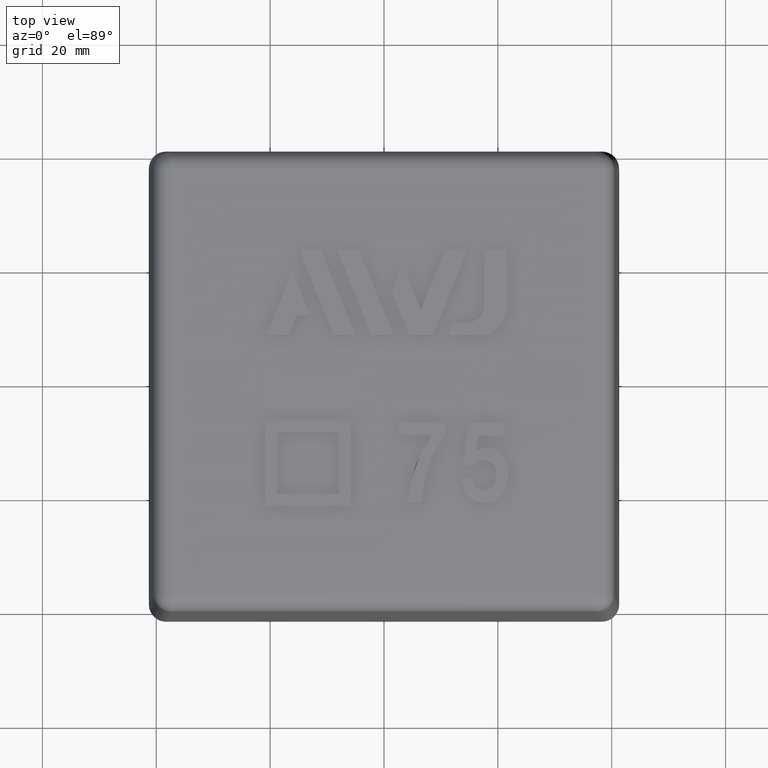
[diagram: clean part render]
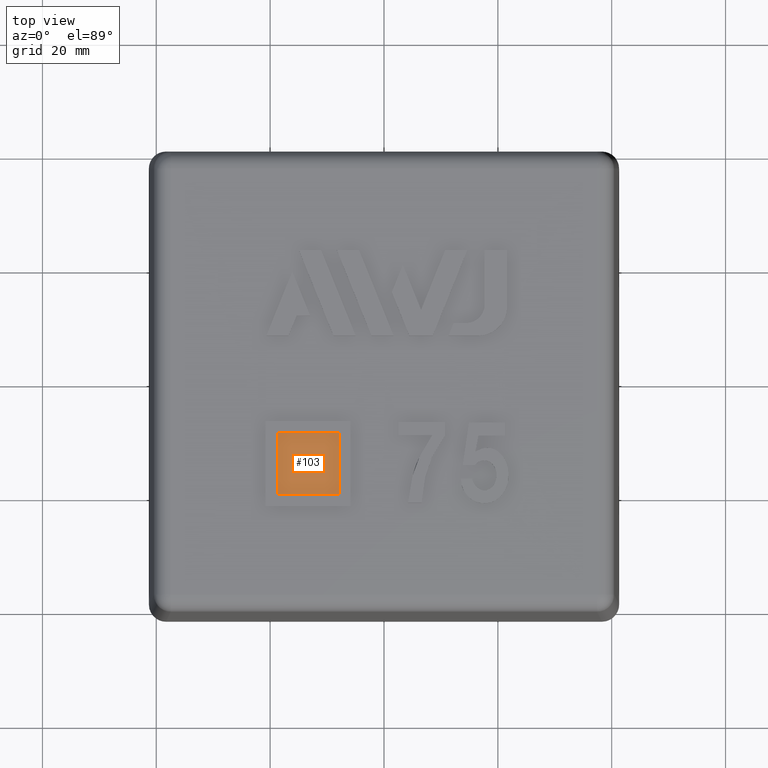
[diagram: same view with one face highlighted and labeled with its STEP entity id]
A machine part, top view. The second image highlights one B-rep face of the part: STEP entity #103.
In plain terms, the highlighted planar face has unit normal (0, 0, 1).
Its self-contained STEP definition (entity closure, byte-faithful):
#103 = ADVANCED_FACE( '', ( #226 ), #227, .T. );
#226 = FACE_OUTER_BOUND( '', #410, .T. );
#227 = PLANE( '', #411 );
#410 = EDGE_LOOP( '', ( #812, #813, #814, #815 ) );
#411 = AXIS2_PLACEMENT_3D( '', #816, #817, #818 );
#812 = ORIENTED_EDGE( '', *, *, #1342, .T. );
#813 = ORIENTED_EDGE( '', *, *, #1343, .T. );
#814 = ORIENTED_EDGE( '', *, *, #1344, .T. );
#815 = ORIENTED_EDGE( '', *, *, #1345, .T. );
#816 = CARTESIAN_POINT( '', ( -41.3000000000000, -41.3000000000000, 53.0000000000000 ) );
#817 = DIRECTION( '', ( 0.000000000000000, 0.000000000000000, 1.00000000000000 ) );
#818 = DIRECTION( '', ( 0.000000000000000, -1.00000000000000, 0.000000000000000 ) );
#1342 = EDGE_CURVE( '', #1641, #1642, #1643, .T. );
#1343 = EDGE_CURVE( '', #1642, #1644, #1645, .T. );
#1344 = EDGE_CURVE( '', #1644, #1646, #1647, .T. );
#1345 = EDGE_CURVE( '', #1646, #1641, #1648, .T. );
#1641 = VERTEX_POINT( '', #2173 );
#1642 = VERTEX_POINT( '', #2174 );
#1643 = B_SPLINE_CURVE_WITH_KNOTS( '', 2, ( #2175, #2176, #2177 ), .UNSPECIFIED., .F., .F., ( 3, 3 ), ( 3.00000000000000, 4.00000000000000 ), .UNSPECIFIED. );
#1644 = VERTEX_POINT( '', #2178 );
#1645 = B_SPLINE_CURVE_WITH_KNOTS( '', 2, ( #2179, #2180, #2181 ), .UNSPECIFIED., .F., .F., ( 3, 3 ), ( 0.000000000000000, 1.00000000000000 ), .UNSPECIFIED. );
#1646 = VERTEX_POINT( '', #2182 );
#1647 = B_SPLINE_CURVE_WITH_KNOTS( '', 2, ( #2183, #2184, #2185 ), .UNSPECIFIED., .F., .F., ( 3, 3 ), ( 1.00000000000000, 2.00000000000000 ), .UNSPECIFIED. );
#1648 = B_SPLINE_CURVE_WITH_KNOTS( '', 2, ( #2186, #2187, #2188 ), .UNSPECIFIED., .F., .F., ( 3, 3 ), ( 2.00000000000000, 3.00000000000000 ), .UNSPECIFIED. );
#2173 = CARTESIAN_POINT( '', ( -18.7624892045455, -9.01355454545457, 53.0000000000000 ) );
#2174 = CARTESIAN_POINT( '', ( -18.7624892045455, -19.8544636363637, 53.0000000000000 ) );
#2175 = CARTESIAN_POINT( '', ( -18.7624892045455, -9.01355454545457, 53.0000000000000 ) );
#2176 = CARTESIAN_POINT( '', ( -18.7624892045455, -14.4340090909091, 53.0000000000000 ) );
#2177 = CARTESIAN_POINT( '', ( -18.7624892045455, -19.8544636363637, 53.0000000000000 ) );
#2178 = CARTESIAN_POINT( '', ( -7.92158011363640, -19.8544636363637, 53.0000000000000 ) );
#2179 = CARTESIAN_POINT( '', ( -18.7624892045455, -19.8544636363637, 53.0000000000000 ) );
#2180 = CARTESIAN_POINT( '', ( -13.3420346590910, -19.8544636363637, 53.0000000000000 ) );
#2181 = CARTESIAN_POINT( '', ( -7.92158011363640, -19.8544636363637, 53.0000000000000 ) );
#2182 = CARTESIAN_POINT( '', ( -7.92158011363640, -9.01355454545457, 53.0000000000000 ) );
#2183 = CARTESIAN_POINT( '', ( -7.92158011363640, -19.8544636363637, 53.0000000000000 ) );
#2184 = CARTESIAN_POINT( '', ( -7.92158011363640, -14.4340090909091, 53.0000000000000 ) );
#2185 = CARTESIAN_POINT( '', ( -7.92158011363640, -9.01355454545457, 53.0000000000000 ) );
#2186 = CARTESIAN_POINT( '', ( -7.92158011363640, -9.01355454545457, 53.0000000000000 ) );
#2187 = CARTESIAN_POINT( '', ( -13.3420346590910, -9.01355454545457, 53.0000000000000 ) );
#2188 = CARTESIAN_POINT( '', ( -18.7624892045455, -9.01355454545457, 53.0000000000000 ) );